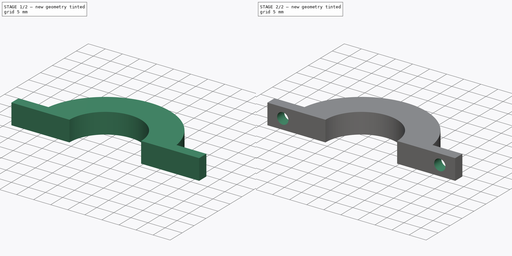
[diagram: build sequence overview — one tinted view per stage of 2, left to right]
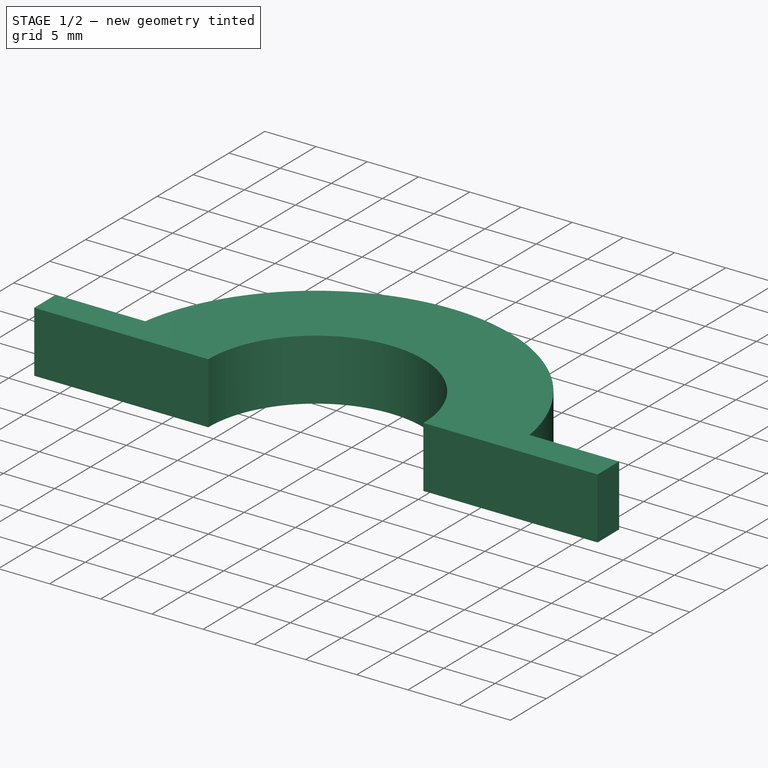
[diagram: stage 1 of 2 — iso view after this stage's code; geometry added in this stage tinted green]
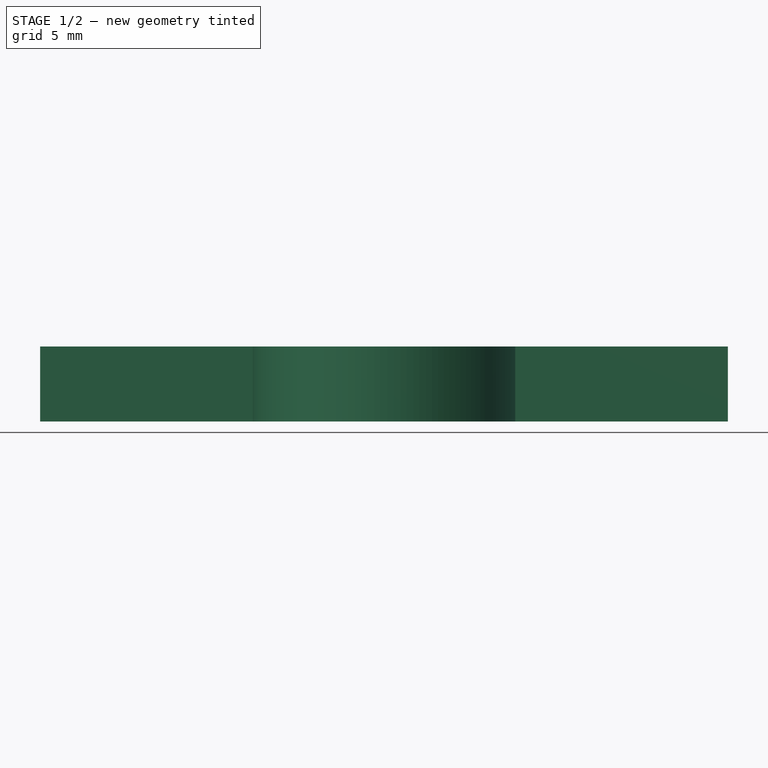
[diagram: stage 1 of 2 — front view after this stage's code; geometry added in this stage tinted green]
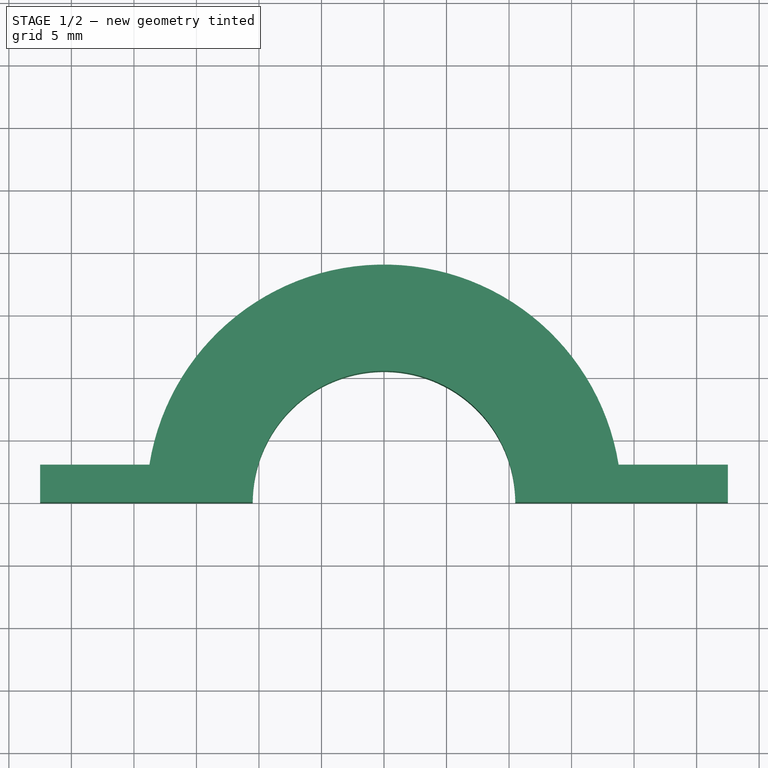
[diagram: stage 1 of 2 — top view after this stage's code; geometry added in this stage tinted green]
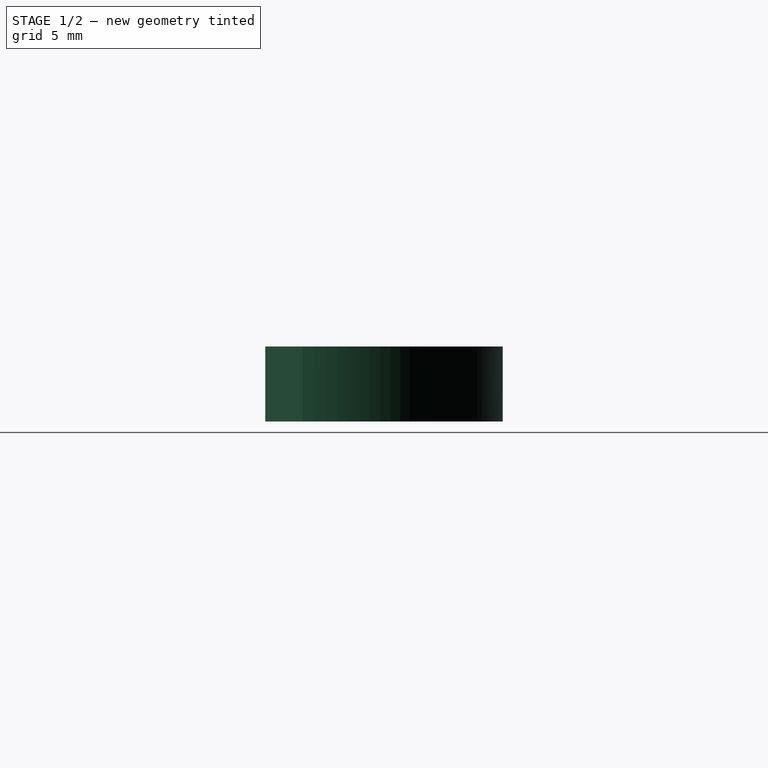
[diagram: stage 1 of 2 — right view after this stage's code; geometry added in this stage tinted green]
FCSTD DOCUMENT  (FreeCAD 0.17RUnknown)
Label: lpd3806-600bm-g5-24c_support_mobile_p2
License: All rights reserved
LicenseURL: http://en.wikipedia.org/wiki/All_rights_reserved
objects: Sketcher::SketchObject×2, PartDesign::Pad×1, PartDesign::Hole×1, PartDesign::Body×1
note: 7 computed .brp shape members not serialized (recipe doc carries the construction recipe); baked Part::Feature solids carry a one-line shape summary decoded from their .brp

FEATURE [Sketcher::SketchObject] Sketch
  MapMode = 5
  Support = -> [XY_Plane]
  sketch-geometry (8):
    g0: ArcOfCircle CenterX=0 CenterY=0 CenterZ=0 NormalX=0 NormalY=0 NormalZ=1 AngleXU=0 Radius=10.5 StartAngle=0 EndAngle=3.14159
    g1: LineSegment StartX=27.5 StartY=0 StartZ=0 EndX=10.5 EndY=0 EndZ=0
    g2: LineSegment StartX=-27.5 StartY=0 StartZ=0 EndX=-10.5 EndY=0 EndZ=0
    g3: ArcOfCircle CenterX=0 CenterY=0 CenterZ=0 NormalX=0 NormalY=0 NormalZ=1 AngleXU=0 Radius=19 StartAngle=0.158558 EndAngle=2.98303
    g4: LineSegment StartX=-18.7617 StartY=3 StartZ=0 EndX=-27.5 EndY=3 EndZ=0
    g5: LineSegment StartX=-27.5 StartY=3 StartZ=0 EndX=-27.5 EndY=0 EndZ=0
    g6: LineSegment StartX=27.5 StartY=0 StartZ=0 EndX=27.5 EndY=3 EndZ=0
    g7: LineSegment StartX=27.5 StartY=3 StartZ=0 EndX=18.7617 EndY=3 EndZ=0
  constraints (25):
    c: Coincident(g0,g-1)
    c: PointOnObject(g0,g-1)
    c: PointOnObject(g0,g-1)
    c: Coincident(g1,g0)
    c: Horizontal(g1)
    c: PointOnObject(g2,g-1)
    c: Horizontal(g2)
    c: Coincident(g2,g0)
    c: Coincident(g3,g-1)
    c: Radius(g0) = 10.5
    c: Radius(g3) = 19
    c: Coincident(g3,g4)
    c: Coincident(g4,g5)
    c: Coincident(g5,g2)
    c: Vertical(g5)
    c: Horizontal(g4)
    c: DistanceX(g2,g2) = 17
    c: DistanceY(g5,g5) = 3
    c: Coincident(g1,g6)
    c: Coincident(g6,g7)
    c: Coincident(g7,g3)
    c: Horizontal(g7)
    c: Equal(g1,g2)
    c: Equal(g5,g6)
    c: Vertical(g6)
FEATURE [PartDesign::Pad] Pad
  Length = 6
  Length2 = 100
  Profile = -> Sketch
  Type = 0
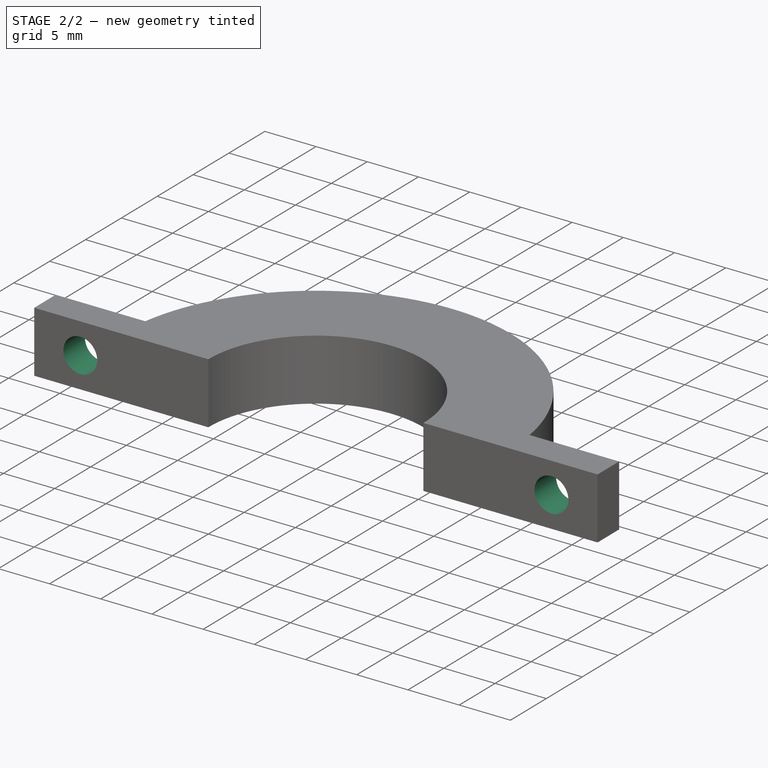
[diagram: stage 2 of 2 — iso view after this stage's code; geometry added in this stage tinted green]
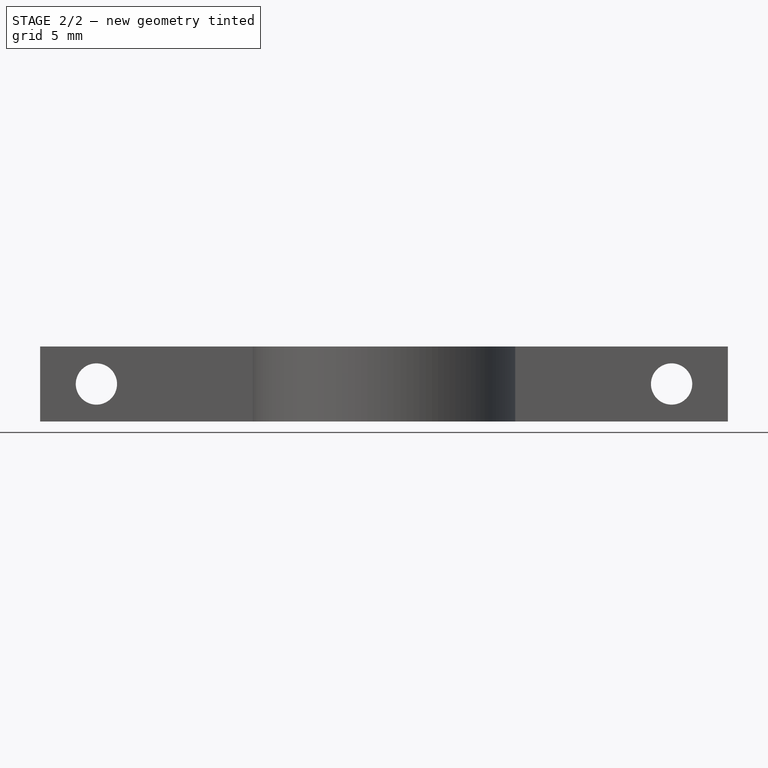
[diagram: stage 2 of 2 — front view after this stage's code; geometry added in this stage tinted green]
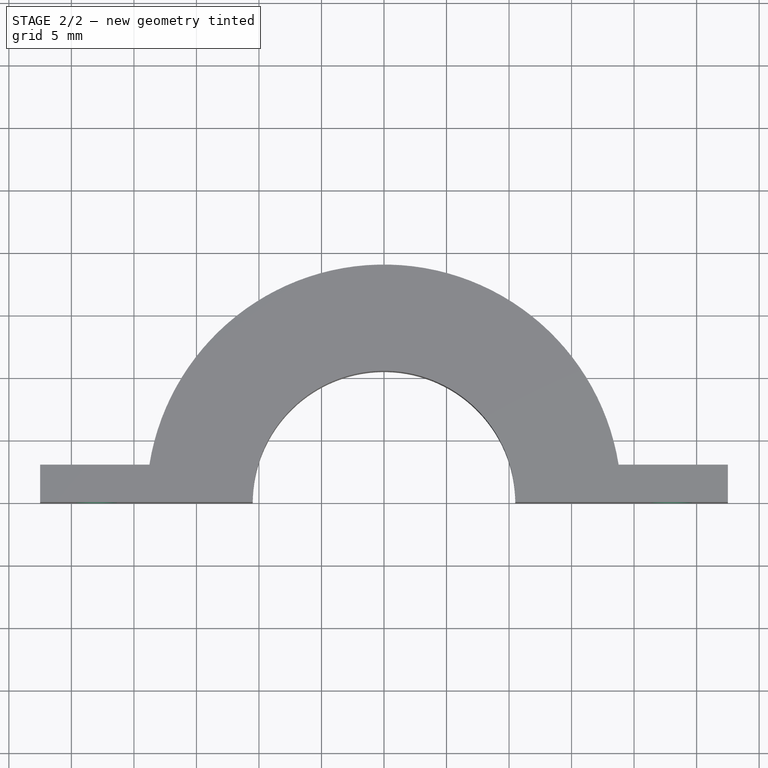
[diagram: stage 2 of 2 — top view after this stage's code; geometry added in this stage tinted green]
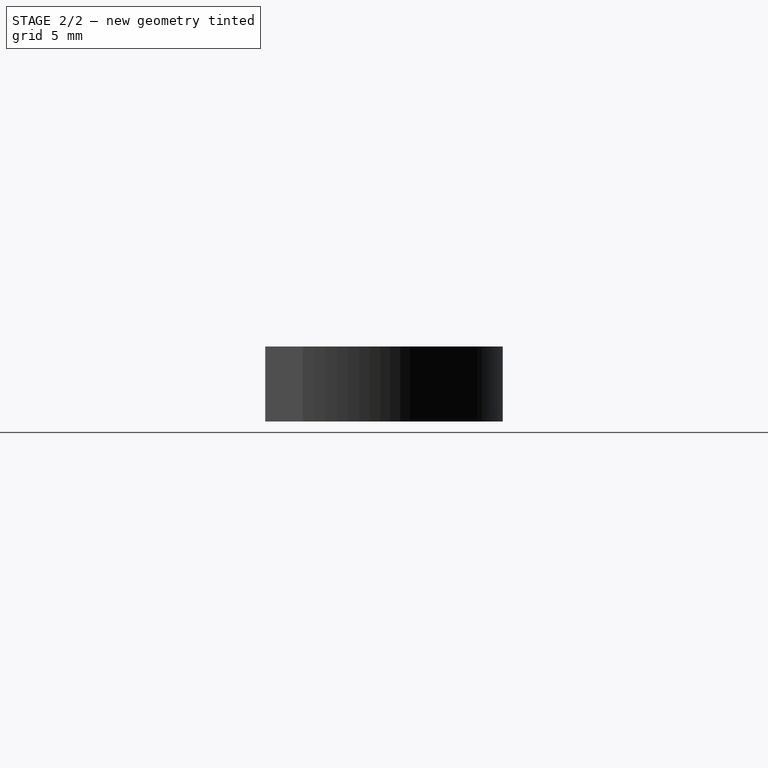
[diagram: stage 2 of 2 — right view after this stage's code; geometry added in this stage tinted green]
FEATURE [Sketcher::SketchObject] Sketch001
  ExternalGeometry = -> [Pad]
  MapMode = 5
  Placement = pos=(0,3,0) rot=(0,0.707107,0.707107;3.14159rad)
  Support = -> [Pad]
  sketch-geometry (2):
    g0: Circle CenterX=-23 CenterY=3 CenterZ=0 NormalX=0 NormalY=0 NormalZ=1 AngleXU=0 Radius=1.75
    g1: Circle CenterX=23 CenterY=3 CenterZ=0 NormalX=0 NormalY=0 NormalZ=1 AngleXU=0 Radius=1.75
  constraints (6):
    c: DistanceX(g-3,g0) = 4.5
    c: DistanceX(g1,g-4) = 4.5
    c: DistanceY(g-4,g1) = 3
    c: DistanceY(g-3,g0) = 3
    c: Radius(g0) = 1.75
    c: Equal(g0,g1)
FEATURE [PartDesign::Hole] Hole
  BaseFeature = -> Pad
  Depth = 25
  DepthType = 0
  Diameter = 3.3
  DrillPoint = 1
  DrillPointAngle = 118
  HoleCutCountersinkAngle = 90
  HoleCutDepth = 0
  HoleCutDiameter = 3
  HoleCutType = 0
  ModelActualThread = false
  Profile = -> Sketch001
  Tapered = false
  TaperedAngle = 90
  ThreadAngle = 0
  ThreadClass = 0
  ThreadCutOffInner = 0
  ThreadCutOffOuter = 0
  ThreadDirection = 0
  ThreadFit = 0
  ThreadPitch = 0
  ThreadSize = 3
  ThreadType = 1
  Threaded = false
FEATURE [PartDesign::Body] Body
  Group = -> [Sketch,Pad,Sketch001,Hole]
  Origin = -> Origin
  Tip = -> Hole
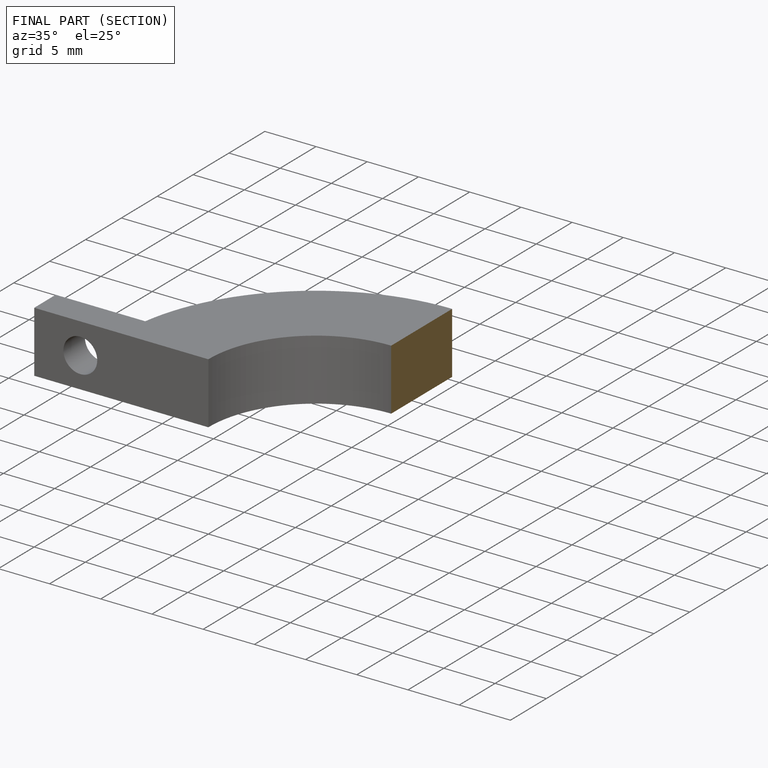
[diagram: finished part — half-section view (interior)]
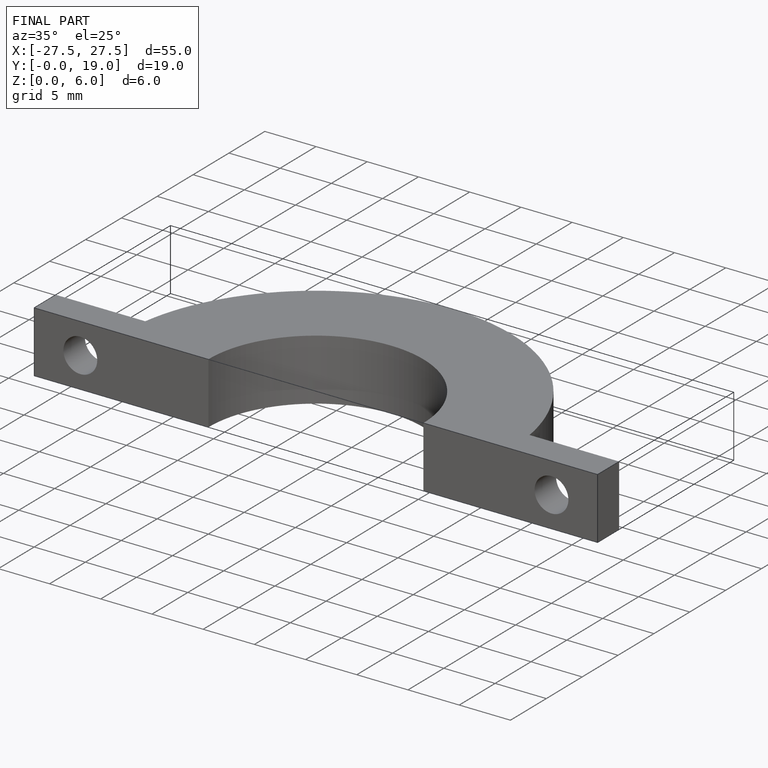
[diagram: finished part — iso view with bounding-box wireframe]
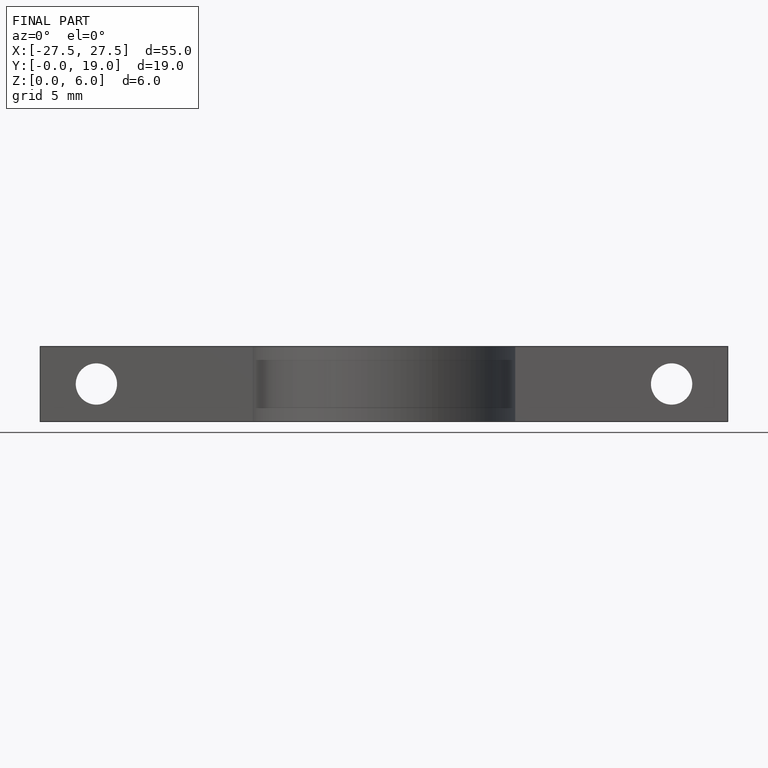
[diagram: finished part — front view with bounding-box wireframe]
